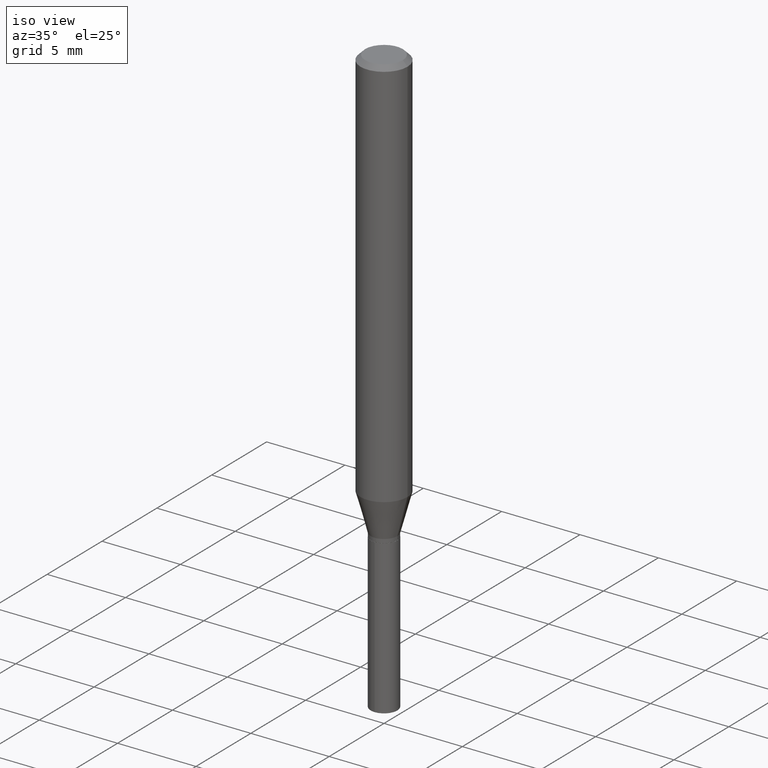
[diagram: clean part render]
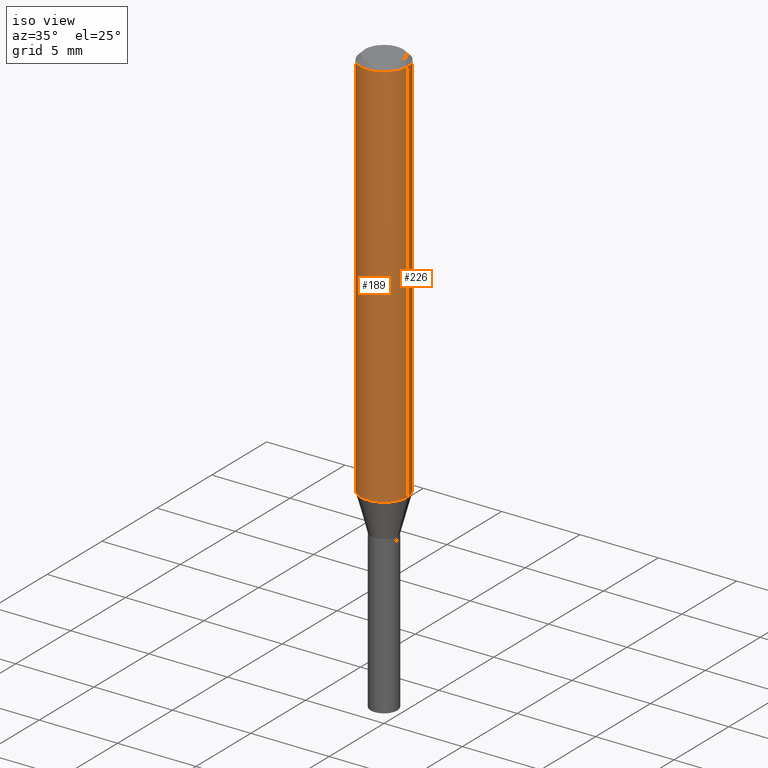
[diagram: same view with one multi-face feature highlighted, each face labeled with its STEP entity id]
A machine part, iso view. The highlighted faces form ONE feature: a constant-radius fillet chain: 2 tangent blend faces with common blend radius 1.4999 mm. The faces share edges in the B-rep.
Their STEP definitions:
[1] entity #226 (Cylinder):
#9 = CARTESIAN_POINT ( 'NONE',  ( 0.05904999999999999832, -4.535783407291118600E-16, -0.01181000000000007218 ) ) ;
#12 = DIRECTION ( 'NONE',  ( -2.445468806185136877E-29, 3.491481338843145188E-15, 1.000000000000000000 ) ) ;
#36 = VERTEX_POINT ( 'NONE', #246 ) ;
#42 = VERTEX_POINT ( 'NONE', #202 ) ;
#52 = LINE ( 'NONE', #465, #241 ) ;
#53 = EDGE_CURVE ( 'NONE', #341, #36, #468, .T. ) ;
#83 = VERTEX_POINT ( 'NONE', #9 ) ;
#128 = DIRECTION ( 'NONE',  ( -2.445468806185136877E-29, 3.491481338843145188E-15, 1.000000000000000000 ) ) ;
#136 = VECTOR ( 'NONE', #12, 39.37007874015748143 ) ;
#137 = FACE_OUTER_BOUND ( 'NONE', #398, .T. ) ;
#158 = EDGE_CURVE ( 'NONE', #42, #341, #166, .T. ) ;
#161 = EDGE_CURVE ( 'NONE', #42, #83, #52, .T. ) ;
#166 = CIRCLE ( 'NONE', #407, 0.05905000000000011628 ) ;
#172 = DIRECTION ( 'NONE',  ( 1.000000000000000000, -6.982962677686266711E-15, 4.876176775795935793E-29 ) ) ;
#180 = CARTESIAN_POINT ( 'NONE',  ( 0.000000000000000000, 0.000000000000000000, 0.000000000000000000 ) ) ;
#202 = CARTESIAN_POINT ( 'NONE',  ( 0.05905000000000011628, -3.865277582886589578E-15, -0.9889594993262362799 ) ) ;
#203 = CIRCLE ( 'NONE', #391, 0.05904999999999999832 ) ;
#221 = ORIENTED_EDGE ( 'NONE', *, *, #53, .T. ) ;
#226 = ADVANCED_FACE ( 'NONE', ( #137 ), #291, .T. ) ;
#241 = VECTOR ( 'NONE', #128, 39.37007874015748143 ) ;
#243 = CARTESIAN_POINT ( 'NONE',  ( 2.418469606182781541E-29, -3.452933636769214658E-15, -0.9889594993262362799 ) ) ;
#246 = CARTESIAN_POINT ( 'NONE',  ( -0.05904999999999999832, -1.327508530224135714E-15, -0.01181000000000007218 ) ) ;
#248 = AXIS2_PLACEMENT_3D ( 'NONE', #180, #361, #172 ) ;
#260 = DIRECTION ( 'NONE',  ( 1.000000000000000000, -6.982962677686266711E-15, 0.000000000000000000 ) ) ;
#283 = EDGE_CURVE ( 'NONE', #83, #36, #203, .T. ) ;
#291 = CYLINDRICAL_SURFACE ( 'NONE', #248, 0.05905000000000006077 ) ;
#306 = ORIENTED_EDGE ( 'NONE', *, *, #158, .T. ) ;
#337 = ORIENTED_EDGE ( 'NONE', *, *, #283, .F. ) ;
#341 = VERTEX_POINT ( 'NONE', #439 ) ;
#354 = DIRECTION ( 'NONE',  ( -2.445468806185136597E-29, 3.491481338843145583E-15, 1.000000000000000000 ) ) ;
#360 = ORIENTED_EDGE ( 'NONE', *, *, #161, .F. ) ;
#361 = DIRECTION ( 'NONE',  ( -2.445468806185136597E-29, 3.491481338843145583E-15, 1.000000000000000000 ) ) ;
#388 = DIRECTION ( 'NONE',  ( 1.000000000000000000, -6.982962677686266711E-15, 0.000000000000000000 ) ) ;
#389 = CARTESIAN_POINT ( 'NONE',  ( -0.05905000000000006077, 4.195754854663395916E-16, -2.904631170795524694E-30 ) ) ;
#391 = AXIS2_PLACEMENT_3D ( 'NONE', #476, #473, #260 ) ;
#398 = EDGE_LOOP ( 'NONE', ( #306, #221, #337, #360 ) ) ;
#407 = AXIS2_PLACEMENT_3D ( 'NONE', #243, #354, #388 ) ;
#439 = CARTESIAN_POINT ( 'NONE',  ( -0.05905000000000011628, -3.033358151302874771E-15, -0.9889594993262362799 ) ) ;
#465 = CARTESIAN_POINT ( 'NONE',  ( 0.05905000000000006077, -4.123439461173744764E-16, 2.879382386107503023E-30 ) ) ;
#468 = LINE ( 'NONE', #389, #136 ) ;
#473 = DIRECTION ( 'NONE',  ( -2.445468806185136597E-29, 3.491481338843145583E-15, 1.000000000000000000 ) ) ;
#476 = CARTESIAN_POINT ( 'NONE',  ( 2.888098660104664204E-31, -4.123439461173780263E-17, -0.01181000000000007218 ) ) ;
[2] entity #189 (Cylinder):
#9 = CARTESIAN_POINT ( 'NONE',  ( 0.05904999999999999832, -4.535783407291118600E-16, -0.01181000000000007218 ) ) ;
#12 = DIRECTION ( 'NONE',  ( -2.445468806185136877E-29, 3.491481338843145188E-15, 1.000000000000000000 ) ) ;
#21 = CARTESIAN_POINT ( 'NONE',  ( 0.000000000000000000, 0.000000000000000000, 0.000000000000000000 ) ) ;
#36 = VERTEX_POINT ( 'NONE', #246 ) ;
#42 = VERTEX_POINT ( 'NONE', #202 ) ;
#52 = LINE ( 'NONE', #465, #241 ) ;
#53 = EDGE_CURVE ( 'NONE', #341, #36, #468, .T. ) ;
#61 = ORIENTED_EDGE ( 'NONE', *, *, #390, .F. ) ;
#81 = ORIENTED_EDGE ( 'NONE', *, *, #325, .T. ) ;
#83 = VERTEX_POINT ( 'NONE', #9 ) ;
#96 = CARTESIAN_POINT ( 'NONE',  ( 2.418469606182781541E-29, -3.452933636769214658E-15, -0.9889594993262362799 ) ) ;
#128 = DIRECTION ( 'NONE',  ( -2.445468806185136877E-29, 3.491481338843145188E-15, 1.000000000000000000 ) ) ;
#136 = VECTOR ( 'NONE', #12, 39.37007874015748143 ) ;
#148 = AXIS2_PLACEMENT_3D ( 'NONE', #96, #293, #170 ) ;
#161 = EDGE_CURVE ( 'NONE', #42, #83, #52, .T. ) ;
#170 = DIRECTION ( 'NONE',  ( 1.000000000000000000, -6.982962677686266711E-15, 0.000000000000000000 ) ) ;
#184 = ORIENTED_EDGE ( 'NONE', *, *, #161, .T. ) ;
#189 = ADVANCED_FACE ( 'NONE', ( #252 ), #328, .T. ) ;
#202 = CARTESIAN_POINT ( 'NONE',  ( 0.05905000000000011628, -3.865277582886589578E-15, -0.9889594993262362799 ) ) ;
#220 = CARTESIAN_POINT ( 'NONE',  ( 2.888098660104664204E-31, -4.123439461173780263E-17, -0.01181000000000007218 ) ) ;
#241 = VECTOR ( 'NONE', #128, 39.37007874015748143 ) ;
#246 = CARTESIAN_POINT ( 'NONE',  ( -0.05904999999999999832, -1.327508530224135714E-15, -0.01181000000000007218 ) ) ;
#252 = FACE_OUTER_BOUND ( 'NONE', #274, .T. ) ;
#255 = ORIENTED_EDGE ( 'NONE', *, *, #53, .F. ) ;
#259 = DIRECTION ( 'NONE',  ( -2.445468806185136597E-29, 3.491481338843145583E-15, 1.000000000000000000 ) ) ;
#274 = EDGE_LOOP ( 'NONE', ( #255, #81, #184, #61 ) ) ;
#293 = DIRECTION ( 'NONE',  ( -2.445468806185136597E-29, 3.491481338843145583E-15, 1.000000000000000000 ) ) ;
#295 = CIRCLE ( 'NONE', #479, 0.05904999999999999832 ) ;
#325 = EDGE_CURVE ( 'NONE', #341, #42, #332, .T. ) ;
#328 = CYLINDRICAL_SURFACE ( 'NONE', #330, 0.05905000000000006077 ) ;
#330 = AXIS2_PLACEMENT_3D ( 'NONE', #21, #259, #365 ) ;
#332 = CIRCLE ( 'NONE', #148, 0.05905000000000011628 ) ;
#341 = VERTEX_POINT ( 'NONE', #439 ) ;
#365 = DIRECTION ( 'NONE',  ( 1.000000000000000000, -6.982962677686266711E-15, 4.876176775795935793E-29 ) ) ;
#389 = CARTESIAN_POINT ( 'NONE',  ( -0.05905000000000006077, 4.195754854663395916E-16, -2.904631170795524694E-30 ) ) ;
#390 = EDGE_CURVE ( 'NONE', #36, #83, #295, .T. ) ;
#439 = CARTESIAN_POINT ( 'NONE',  ( -0.05905000000000011628, -3.033358151302874771E-15, -0.9889594993262362799 ) ) ;
#444 = DIRECTION ( 'NONE',  ( 1.000000000000000000, -6.982962677686266711E-15, 0.000000000000000000 ) ) ;
#465 = CARTESIAN_POINT ( 'NONE',  ( 0.05905000000000006077, -4.123439461173744764E-16, 2.879382386107503023E-30 ) ) ;
#468 = LINE ( 'NONE', #389, #136 ) ;
#479 = AXIS2_PLACEMENT_3D ( 'NONE', #220, #482, #444 ) ;
#482 = DIRECTION ( 'NONE',  ( -2.445468806185136597E-29, 3.491481338843145583E-15, 1.000000000000000000 ) ) ;